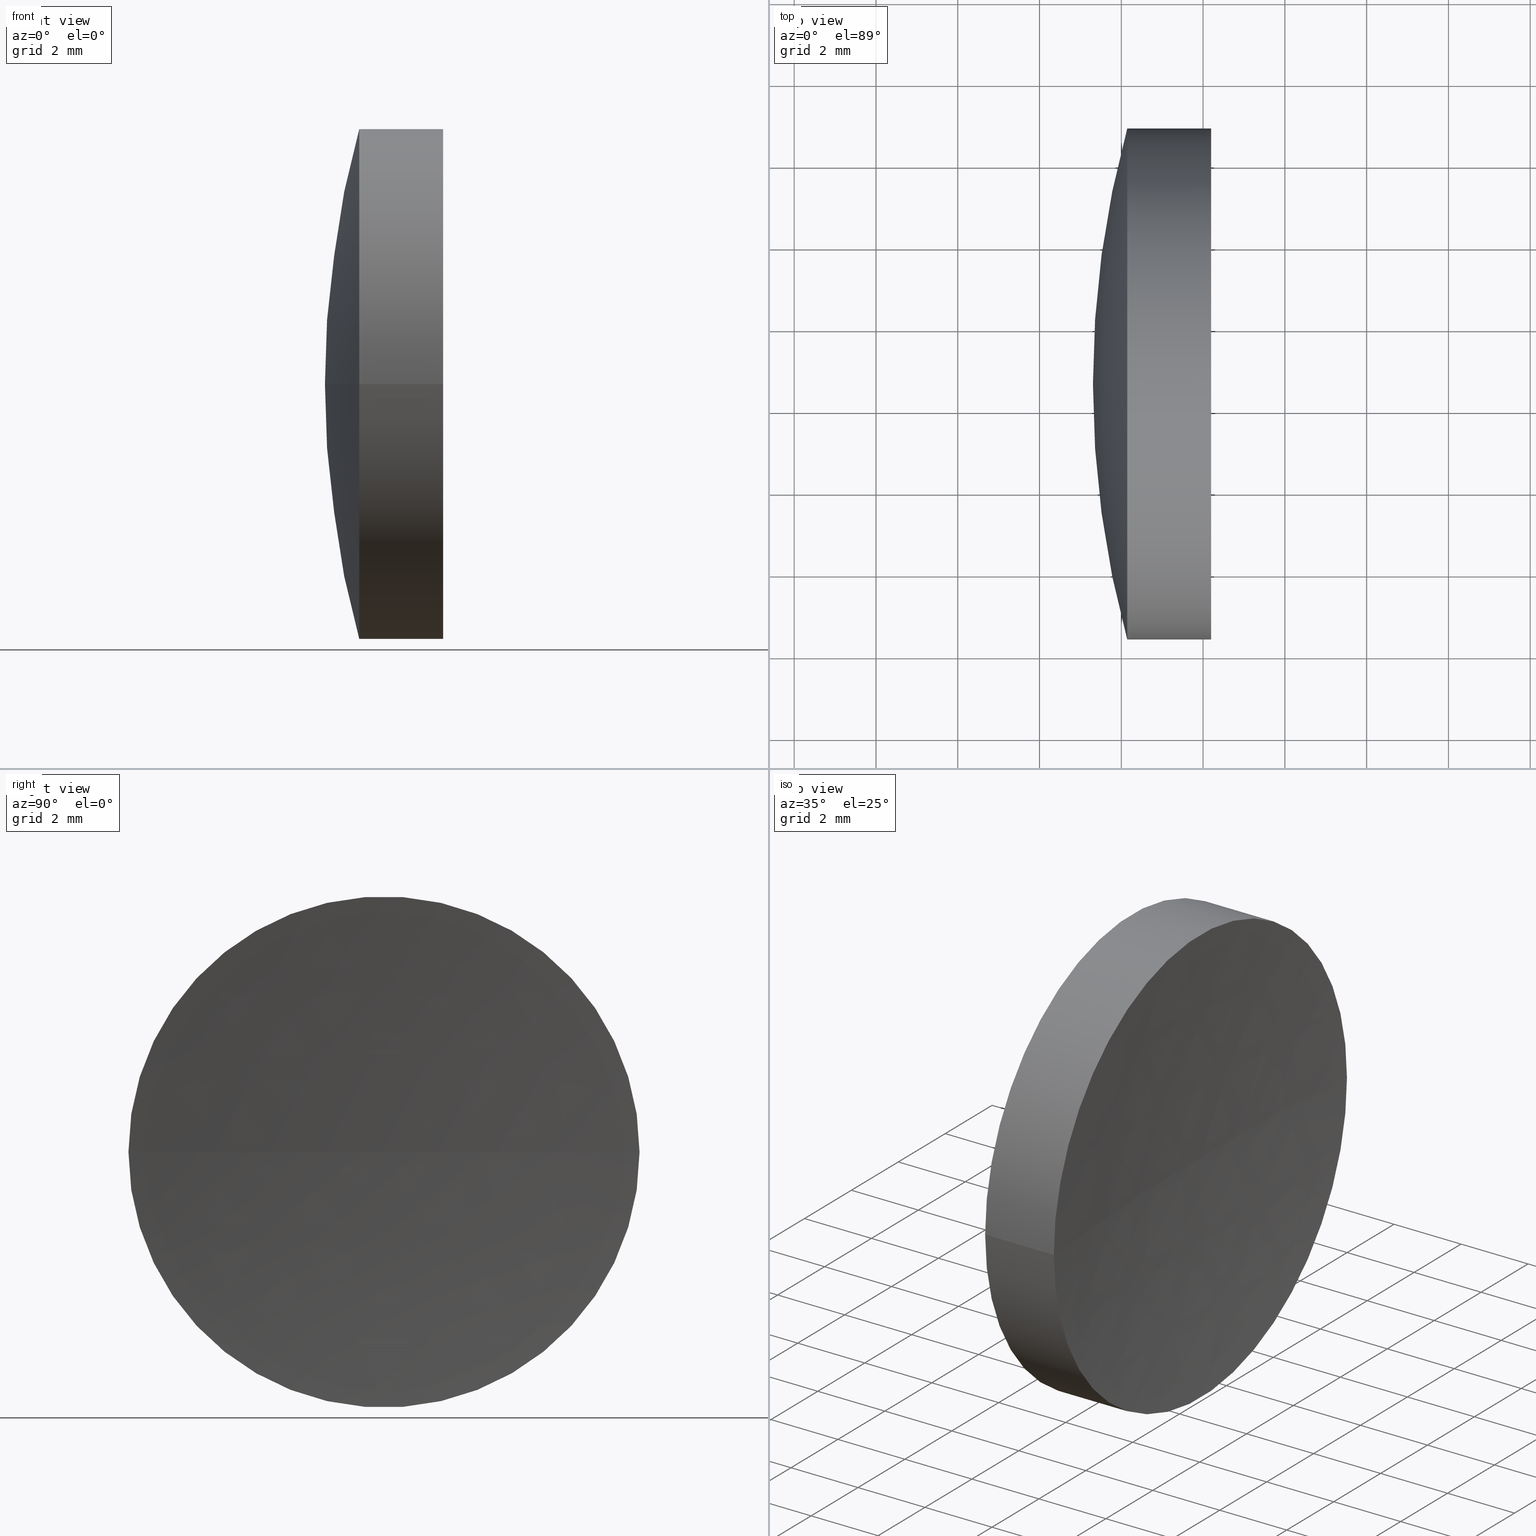
[diagram: canonical four-view strip — front | top / right | iso, engineering-drawing reading convention]
A machine part, canonical four-view strip (front | top / right | iso — engineering-drawing reading convention). The complete STEP part file that produces these views, byte-faithful:
ISO-10303-21;
HEADER;
FILE_DESCRIPTION (( 'STEP AP214' ),
    '1' );
FILE_NAME ('150000.STEP',
    '2019-07-04T01:45:49',
    ( '' ),
    ( '' ),
    'SwSTEP 2.0',
    'SolidWorks 2016',
    '' );
FILE_SCHEMA (( 'AUTOMOTIVE_DESIGN' ));
ENDSEC;

DATA;
#1 = AXIS2_PLACEMENT_3D ( 'NONE', #173, #187, #141 ) ;
#2 = CIRCLE ( 'NONE', #39, 67.70000000000001700 ) ;
#3 =( GEOMETRIC_REPRESENTATION_CONTEXT ( 3 ) GLOBAL_UNCERTAINTY_ASSIGNED_CONTEXT ( ( #128 ) ) GLOBAL_UNIT_ASSIGNED_CONTEXT ( ( #170, #91, #161 ) ) REPRESENTATION_CONTEXT ( 'NONE', 'WORKASPACE' ) );
#4 = SURFACE_STYLE_USAGE ( .BOTH. , #83 ) ;
#5 = FACE_OUTER_BOUND ( 'NONE', #122, .T. ) ;
#6 = CARTESIAN_POINT ( 'NONE',  ( 64.19521112219439400, 26.35842023547015200, -7.654042494670929000E-016 ) ) ;
#7 =( NAMED_UNIT ( * ) PLANE_ANGLE_UNIT ( ) SI_UNIT ( $, .RADIAN. ) );
#8 = PRESENTATION_STYLE_ASSIGNMENT (( #4 ) ) ;
#9 = EDGE_CURVE ( 'NONE', #43, #147, #69, .T. ) ;
#10 = ORIENTED_EDGE ( 'NONE', *, *, #60, .T. ) ;
#11 = EDGE_CURVE ( 'NONE', #147, #45, #25, .T. ) ;
#12 = LINE ( 'NONE', #16, #47 ) ;
#13 = PRESENTATION_LAYER_ASSIGNMENT (  '', '', ( #125 ) ) ;
#14 = ORIENTED_EDGE ( 'NONE', *, *, #9, .F. ) ;
#15 = VERTEX_POINT ( 'NONE', #6 ) ;
#16 = CARTESIAN_POINT ( 'NONE',  ( 57.97224564898159100, 26.35842023547016700, 0.0000000000000000000 ) ) ;
#17 = EDGE_CURVE ( 'NONE', #15, #46, #35, .T. ) ;
#18 = CYLINDRICAL_SURFACE ( 'NONE', #149, 6.249999999999995600 ) ;
#19 = DIRECTION ( 'NONE',  ( -8.496118506040342700E-032, 1.224646799147353200E-016, -1.000000000000000000 ) ) ;
#20 = MECHANICAL_DESIGN_GEOMETRIC_PRESENTATION_REPRESENTATION (  '', ( #125 ), #142 ) ;
#21 = CARTESIAN_POINT ( 'NONE',  ( 85.00609674165498600, 32.60842023547017000, 0.0000000000000000000 ) ) ;
#22 = APPLICATION_PROTOCOL_DEFINITION ( 'draft international standard', 'automotive_design', 1998, #104 ) ;
#23 = SURFACE_STYLE_FILL_AREA ( #71 ) ;
#24 = AXIS2_PLACEMENT_3D ( 'NONE', #65, #116, #98 ) ;
#25 = CIRCLE ( 'NONE', #162, 23.69999999999999900 ) ;
#26 = AXIS2_PLACEMENT_3D ( 'NONE', #49, #165, #112 ) ;
#27 = CARTESIAN_POINT ( 'NONE',  ( 62.14504908412190100, 32.60842023547016300, 0.0000000000000000000 ) ) ;
#28 = FILL_AREA_STYLE_COLOUR ( '', #74 ) ;
#29 = ADVANCED_FACE ( 'NONE', ( #93 ), #92, .T. ) ;
#30 = MANIFOLD_SOLID_BREP ( '��ת1', #66 ) ;
#31 = DIRECTION ( 'NONE',  ( -8.199579206980475300E-016, 1.000000000000000000, 0.0000000000000000000 ) ) ;
#32 = CIRCLE ( 'NONE', #177, 67.70000000000001700 ) ;
#33 = CARTESIAN_POINT ( 'NONE',  ( 131.6060967416549900, 32.60842023547017700, 0.0000000000000000000 ) ) ;
#34 = DIRECTION ( 'NONE',  ( 1.110223024625157300E-015, -1.000000000000000000, 0.0000000000000000000 ) ) ;
#35 = CIRCLE ( 'NONE', #174, 6.249999999999995600 ) ;
#36 = DIRECTION ( 'NONE',  ( -1.000000000000000000, -6.937607244762875000E-016, -0.0000000000000000000 ) ) ;
#37 = ORIENTED_EDGE ( 'NONE', *, *, #121, .F. ) ;
#38 = PRODUCT_CONTEXT ( 'NONE', #188, 'mechanical' ) ;
#39 = AXIS2_PLACEMENT_3D ( 'NONE', #155, #159, #183 ) ;
#40 = ORIENTED_EDGE ( 'NONE', *, *, #9, .T. ) ;
#41 = SURFACE_SIDE_STYLE ('',( #23 ) ) ;
#42 = AXIS2_PLACEMENT_3D ( 'NONE', #53, #90, #176 ) ;
#43 = VERTEX_POINT ( 'NONE', #48 ) ;
#44 = AXIS2_PLACEMENT_3D ( 'NONE', #152, #169, #85 ) ;
#45 = VERTEX_POINT ( 'NONE', #51 ) ;
#46 = VERTEX_POINT ( 'NONE', #186 ) ;
#47 = VECTOR ( 'NONE', #101, 1000.000000000000000 ) ;
#48 = CARTESIAN_POINT ( 'NONE',  ( 62.14504908412190100, 26.35842023547016300, -7.654042494670948700E-016 ) ) ;
#49 = CARTESIAN_POINT ( 'NONE',  ( 85.00609674165498600, 32.60842023547017000, 0.0000000000000000000 ) ) ;
#50 = ADVANCED_FACE ( 'NONE', ( #143 ), #18, .T. ) ;
#51 = CARTESIAN_POINT ( 'NONE',  ( 61.30609674165499700, 32.60842023547015600, 0.0000000000000000000 ) ) ;
#52 = EDGE_CURVE ( 'NONE', #15, #43, #12, .T. ) ;
#53 = CARTESIAN_POINT ( 'NONE',  ( 0.0000000000000000000, 0.0000000000000000000, 0.0000000000000000000 ) ) ;
#54 = DIRECTION ( 'NONE',  ( 0.0000000000000000000, 0.0000000000000000000, -1.000000000000000000 ) ) ;
#55 = PRODUCT_DEFINITION ( 'δ֪', '', #72, #137 ) ;
#56 = DIRECTION ( 'NONE',  ( 1.000000000000000000, 0.0000000000000000000, 0.0000000000000000000 ) ) ;
#57 = ORIENTED_EDGE ( 'NONE', *, *, #107, .T. ) ;
#58 = APPLICATION_PROTOCOL_DEFINITION ( 'draft international standard', 'automotive_design', 1998, #188 ) ;
#59 = UNCERTAINTY_MEASURE_WITH_UNIT (LENGTH_MEASURE( 1.000000000000000100E-005 ), #120, 'distance_accuracy_value', 'NONE');
#60 = EDGE_CURVE ( 'NONE', #46, #147, #87, .T. ) ;
#61 = VERTEX_POINT ( 'NONE', #86 ) ;
#62 = DIRECTION ( 'NONE',  ( -1.000000000000000000, -6.937607244762875000E-016, -0.0000000000000000000 ) ) ;
#63 = AXIS2_PLACEMENT_3D ( 'NONE', #33, #99, #31 ) ;
#64 = ADVANCED_FACE ( 'NONE', ( #164 ), #78, .F. ) ;
#65 = CARTESIAN_POINT ( 'NONE',  ( 85.00609674165498600, 32.60842023547017000, 0.0000000000000000000 ) ) ;
#66 = CLOSED_SHELL ( 'NONE', ( #97, #64, #151, #29, #113, #50 ) ) ;
#67 = CARTESIAN_POINT ( 'NONE',  ( 131.6060967416549900, 32.60842023547017700, 0.0000000000000000000 ) ) ;
#68 = STYLED_ITEM ( 'NONE', ( #8 ), #30 ) ;
#69 = CIRCLE ( 'NONE', #134, 6.249999999999995600 ) ;
#70 = ORIENTED_EDGE ( 'NONE', *, *, #11, .F. ) ;
#71 = FILL_AREA_STYLE ('',( #139 ) ) ;
#72 = PRODUCT_DEFINITION_FORMATION_WITH_SPECIFIED_SOURCE ( '�κ�', '', #75, .NOT_KNOWN. ) ;
#73 = AXIS2_PLACEMENT_3D ( 'NONE', #138, #54, #184 ) ;
#74 = COLOUR_RGB ( '',1.000000000000000000, 1.000000000000000000, 1.000000000000000000 ) ;
#75 = PRODUCT ( '150000', '150000', '', ( #38 ) ) ;
#76 = ORIENTED_EDGE ( 'NONE', *, *, #52, .F. ) ;
#77 = EDGE_CURVE ( 'NONE', #147, #43, #111, .T. ) ;
#78 = SPHERICAL_SURFACE ( 'NONE', #63, 67.70000000000000300 ) ;
#79 = DIRECTION ( 'NONE',  ( 1.000000000000000000, 0.0000000000000000000, 0.0000000000000000000 ) ) ;
#80 = CARTESIAN_POINT ( 'NONE',  ( 64.19521112219439400, 32.60842023547017000, 0.0000000000000000000 ) ) ;
#81 = EDGE_LOOP ( 'NONE', ( #192, #37, #148 ) ) ;
#82 = PRODUCT_DEFINITION_SHAPE ( 'NONE', 'NONE',  #55 ) ;
#83 = SURFACE_SIDE_STYLE ('',( #171 ) ) ;
#84 = MECHANICAL_DESIGN_GEOMETRIC_PRESENTATION_REPRESENTATION (  '', ( #68 ), #94 ) ;
#85 = DIRECTION ( 'NONE',  ( 0.0000000000000000000, -1.000000000000000000, 0.0000000000000000000 ) ) ;
#86 = CARTESIAN_POINT ( 'NONE',  ( 63.90609674165499900, 32.60842023547013500, 0.0000000000000000000 ) ) ;
#87 = LINE ( 'NONE', #132, #180 ) ;
#88 = EDGE_CURVE ( 'NONE', #46, #61, #32, .T. ) ;
#89 = CARTESIAN_POINT ( 'NONE',  ( 57.97224564898158400, 32.60842023547016300, 0.0000000000000000000 ) ) ;
#90 = DIRECTION ( 'NONE',  ( 0.0000000000000000000, 0.0000000000000000000, 1.000000000000000000 ) ) ;
#91 =( NAMED_UNIT ( * ) PLANE_ANGLE_UNIT ( ) SI_UNIT ( $, .RADIAN. ) );
#92 = SPHERICAL_SURFACE ( 'NONE', #26, 23.69999999999999200 ) ;
#93 = FACE_OUTER_BOUND ( 'NONE', #106, .T. ) ;
#94 =( GEOMETRIC_REPRESENTATION_CONTEXT ( 3 ) GLOBAL_UNCERTAINTY_ASSIGNED_CONTEXT ( ( #160 ) ) GLOBAL_UNIT_ASSIGNED_CONTEXT ( ( #157, #7, #156 ) ) REPRESENTATION_CONTEXT ( 'NONE', 'WORKASPACE' ) );
#95 = ADVANCED_BREP_SHAPE_REPRESENTATION ( '150000', ( #30, #42 ), #3 ) ;
#96 = DIRECTION ( 'NONE',  ( 0.0000000000000000000, -1.000000000000000000, 0.0000000000000000000 ) ) ;
#97 = ADVANCED_FACE ( 'NONE', ( #5 ), #189, .T. ) ;
#98 = DIRECTION ( 'NONE',  ( -5.855606669963907800E-016, 1.000000000000000000, 0.0000000000000000000 ) ) ;
#99 = DIRECTION ( 'NONE',  ( 0.0000000000000000000, 0.0000000000000000000, -1.000000000000000000 ) ) ;
#100 = ORIENTED_EDGE ( 'NONE', *, *, #121, .T. ) ;
#101 = DIRECTION ( 'NONE',  ( -1.000000000000000000, -6.937607244762875000E-016, -0.0000000000000000000 ) ) ;
#102 = CARTESIAN_POINT ( 'NONE',  ( 62.14504908412190100, 32.60842023547016300, 0.0000000000000000000 ) ) ;
#103 = ORIENTED_EDGE ( 'NONE', *, *, #77, .F. ) ;
#104 = APPLICATION_CONTEXT ( 'automotive_design' ) ;
#105 = PRESENTATION_STYLE_ASSIGNMENT (( #190 ) ) ;
#106 = EDGE_LOOP ( 'NONE', ( #191, #40, #158 ) ) ;
#107 = EDGE_CURVE ( 'NONE', #43, #45, #110, .T. ) ;
#108 = SPHERICAL_SURFACE ( 'NONE', #73, 67.70000000000000300 ) ;
#109 = EDGE_CURVE ( 'NONE', #15, #61, #2, .T. ) ;
#110 = CIRCLE ( 'NONE', #185, 23.69999999999999200 ) ;
#111 = CIRCLE ( 'NONE', #119, 6.249999999999995600 ) ;
#112 = DIRECTION ( 'NONE',  ( -5.855606669963907800E-016, 1.000000000000000000, 0.0000000000000000000 ) ) ;
#113 = ADVANCED_FACE ( 'NONE', ( #144 ), #108, .F. ) ;
#114 = DIRECTION ( 'NONE',  ( 1.110223024625157300E-015, -1.000000000000000000, 0.0000000000000000000 ) ) ;
#115 = CIRCLE ( 'NONE', #44, 6.249999999999995600 ) ;
#116 = DIRECTION ( 'NONE',  ( -0.0000000000000000000, 0.0000000000000000000, -1.000000000000000000 ) ) ;
#117 = DIRECTION ( 'NONE',  ( -1.000000000000000000, -6.937607244762875000E-016, -0.0000000000000000000 ) ) ;
#118 = CARTESIAN_POINT ( 'NONE',  ( 62.14504908412188700, 38.85842023547015600, 0.0000000000000000000 ) ) ;
#119 = AXIS2_PLACEMENT_3D ( 'NONE', #102, #36, #34 ) ;
#120 =( LENGTH_UNIT ( ) NAMED_UNIT ( * ) SI_UNIT ( .MILLI., .METRE. ) );
#121 = EDGE_CURVE ( 'NONE', #46, #15, #115, .T. ) ;
#122 = EDGE_LOOP ( 'NONE', ( #124, #10, #14, #76 ) ) ;
#123 = EDGE_LOOP ( 'NONE', ( #163, #168, #172 ) ) ;
#124 = ORIENTED_EDGE ( 'NONE', *, *, #17, .T. ) ;
#125 = STYLED_ITEM ( 'NONE', ( #105 ), #95 ) ;
#126 = CARTESIAN_POINT ( 'NONE',  ( 85.00609674165498600, 32.60842023547017000, 0.0000000000000000000 ) ) ;
#127 = EDGE_LOOP ( 'NONE', ( #140, #57, #70 ) ) ;
#128 = UNCERTAINTY_MEASURE_WITH_UNIT (LENGTH_MEASURE( 1.000000000000000100E-005 ), #170, 'distance_accuracy_value', 'NONE');
#129 = DIRECTION ( 'NONE',  ( 0.0000000000000000000, -0.0000000000000000000, 1.000000000000000000 ) ) ;
#130 = DIRECTION ( 'NONE',  ( -1.000000000000000000, -6.937607244762875000E-016, -0.0000000000000000000 ) ) ;
#131 = DIRECTION ( 'NONE',  ( 0.0000000000000000000, 1.000000000000000000, 1.224646799147353000E-016 ) ) ;
#132 = CARTESIAN_POINT ( 'NONE',  ( 57.97224564898157700, 38.85842023547016300, 7.654042494670950700E-016 ) ) ;
#133 =( NAMED_UNIT ( * ) SI_UNIT ( $, .STERADIAN. ) SOLID_ANGLE_UNIT ( ) );
#134 = AXIS2_PLACEMENT_3D ( 'NONE', #27, #62, #179 ) ;
#135 = SHAPE_DEFINITION_REPRESENTATION ( #82, #95 ) ;
#136 = EDGE_LOOP ( 'NONE', ( #178, #100, #153, #103 ) ) ;
#137 = PRODUCT_DEFINITION_CONTEXT ( 'detailed design', #104, 'design' ) ;
#138 = CARTESIAN_POINT ( 'NONE',  ( 131.6060967416549900, 32.60842023547017700, 0.0000000000000000000 ) ) ;
#139 = FILL_AREA_STYLE_COLOUR ( '', #167 ) ;
#140 = ORIENTED_EDGE ( 'NONE', *, *, #77, .T. ) ;
#141 = DIRECTION ( 'NONE',  ( 1.110223024625157300E-015, -1.000000000000000000, 0.0000000000000000000 ) ) ;
#142 =( GEOMETRIC_REPRESENTATION_CONTEXT ( 3 ) GLOBAL_UNCERTAINTY_ASSIGNED_CONTEXT ( ( #59 ) ) GLOBAL_UNIT_ASSIGNED_CONTEXT ( ( #120, #175, #133 ) ) REPRESENTATION_CONTEXT ( 'NONE', 'WORKASPACE' ) );
#143 = FACE_OUTER_BOUND ( 'NONE', #136, .T. ) ;
#144 = FACE_OUTER_BOUND ( 'NONE', #81, .T. ) ;
#145 = FACE_OUTER_BOUND ( 'NONE', #127, .T. ) ;
#146 = DIRECTION ( 'NONE',  ( -0.0000000000000000000, 0.0000000000000000000, 1.000000000000000000 ) ) ;
#147 = VERTEX_POINT ( 'NONE', #118 ) ;
#148 = ORIENTED_EDGE ( 'NONE', *, *, #88, .T. ) ;
#149 = AXIS2_PLACEMENT_3D ( 'NONE', #89, #117, #114 ) ;
#150 = DIRECTION ( 'NONE',  ( -1.000000000000000000, -6.937607244762875000E-016, -0.0000000000000000000 ) ) ;
#151 = ADVANCED_FACE ( 'NONE', ( #145 ), #182, .T. ) ;
#152 = CARTESIAN_POINT ( 'NONE',  ( 64.19521112219439400, 32.60842023547017000, 0.0000000000000000000 ) ) ;
#153 = ORIENTED_EDGE ( 'NONE', *, *, #52, .T. ) ;
#154 = PRODUCT_RELATED_PRODUCT_CATEGORY ( 'part', '', ( #75 ) ) ;
#155 = CARTESIAN_POINT ( 'NONE',  ( 131.6060967416549900, 32.60842023547017700, 0.0000000000000000000 ) ) ;
#156 =( NAMED_UNIT ( * ) SI_UNIT ( $, .STERADIAN. ) SOLID_ANGLE_UNIT ( ) );
#157 =( LENGTH_UNIT ( ) NAMED_UNIT ( * ) SI_UNIT ( .MILLI., .METRE. ) );
#158 = ORIENTED_EDGE ( 'NONE', *, *, #11, .T. ) ;
#159 = DIRECTION ( 'NONE',  ( -8.496118506040342700E-032, 1.224646799147353200E-016, -1.000000000000000000 ) ) ;
#160 = UNCERTAINTY_MEASURE_WITH_UNIT (LENGTH_MEASURE( 1.000000000000000100E-005 ), #157, 'distance_accuracy_value', 'NONE');
#161 =( NAMED_UNIT ( * ) SI_UNIT ( $, .STERADIAN. ) SOLID_ANGLE_UNIT ( ) );
#162 = AXIS2_PLACEMENT_3D ( 'NONE', #126, #146, #79 ) ;
#163 = ORIENTED_EDGE ( 'NONE', *, *, #17, .F. ) ;
#164 = FACE_OUTER_BOUND ( 'NONE', #123, .T. ) ;
#165 = DIRECTION ( 'NONE',  ( -0.0000000000000000000, 0.0000000000000000000, -1.000000000000000000 ) ) ;
#166 = FILL_AREA_STYLE ('',( #28 ) ) ;
#167 = COLOUR_RGB ( '',1.000000000000000000, 1.000000000000000000, 1.000000000000000000 ) ;
#168 = ORIENTED_EDGE ( 'NONE', *, *, #109, .T. ) ;
#169 = DIRECTION ( 'NONE',  ( -1.000000000000000000, -6.937607244762875000E-016, -0.0000000000000000000 ) ) ;
#170 =( LENGTH_UNIT ( ) NAMED_UNIT ( * ) SI_UNIT ( .MILLI., .METRE. ) );
#171 = SURFACE_STYLE_FILL_AREA ( #166 ) ;
#172 = ORIENTED_EDGE ( 'NONE', *, *, #88, .F. ) ;
#173 = CARTESIAN_POINT ( 'NONE',  ( 57.97224564898158400, 32.60842023547016300, 0.0000000000000000000 ) ) ;
#174 = AXIS2_PLACEMENT_3D ( 'NONE', #80, #150, #96 ) ;
#175 =( NAMED_UNIT ( * ) PLANE_ANGLE_UNIT ( ) SI_UNIT ( $, .RADIAN. ) );
#176 = DIRECTION ( 'NONE',  ( 1.000000000000000000, 0.0000000000000000000, 0.0000000000000000000 ) ) ;
#177 = AXIS2_PLACEMENT_3D ( 'NONE', #67, #129, #56 ) ;
#178 = ORIENTED_EDGE ( 'NONE', *, *, #60, .F. ) ;
#179 = DIRECTION ( 'NONE',  ( 1.110223024625157300E-015, -1.000000000000000000, 0.0000000000000000000 ) ) ;
#180 = VECTOR ( 'NONE', #130, 1000.000000000000000 ) ;
#181 = PRESENTATION_LAYER_ASSIGNMENT (  '', '', ( #68 ) ) ;
#182 = SPHERICAL_SURFACE ( 'NONE', #24, 23.69999999999999200 ) ;
#183 = DIRECTION ( 'NONE',  ( 0.0000000000000000000, 1.000000000000000000, 1.224646799147352700E-016 ) ) ;
#184 = DIRECTION ( 'NONE',  ( -8.199579206980475300E-016, 1.000000000000000000, 0.0000000000000000000 ) ) ;
#185 = AXIS2_PLACEMENT_3D ( 'NONE', #21, #19, #131 ) ;
#186 = CARTESIAN_POINT ( 'NONE',  ( 64.19521112219439400, 38.85842023547014900, 0.0000000000000000000 ) ) ;
#187 = DIRECTION ( 'NONE',  ( -1.000000000000000000, -6.937607244762875000E-016, -0.0000000000000000000 ) ) ;
#188 = APPLICATION_CONTEXT ( 'automotive_design' ) ;
#189 = CYLINDRICAL_SURFACE ( 'NONE', #1, 6.249999999999995600 ) ;
#190 = SURFACE_STYLE_USAGE ( .BOTH. , #41 ) ;
#191 = ORIENTED_EDGE ( 'NONE', *, *, #107, .F. ) ;
#192 = ORIENTED_EDGE ( 'NONE', *, *, #109, .F. ) ;
ENDSEC;
END-ISO-10303-21;
